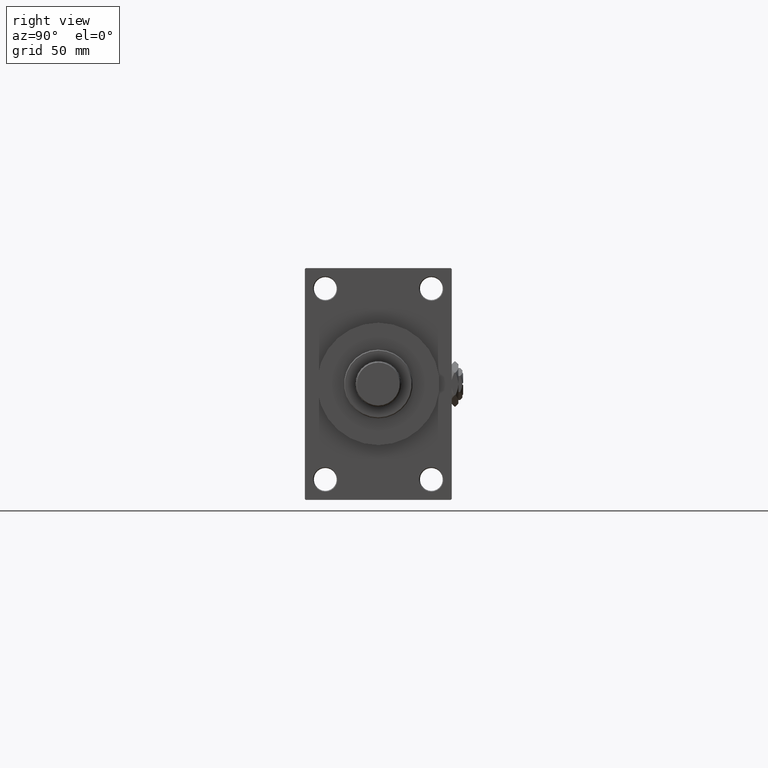
[diagram: clean part render]
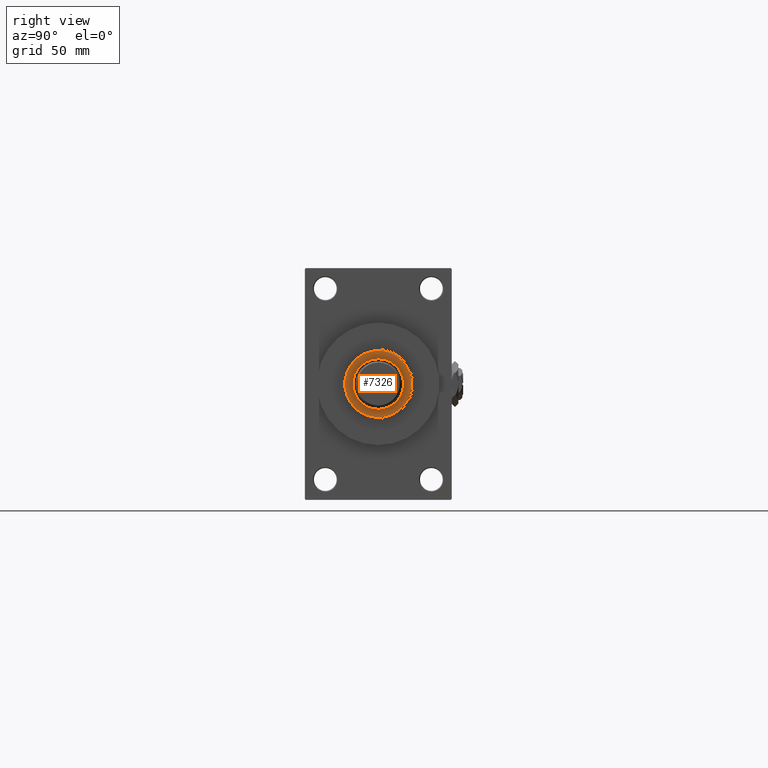
[diagram: same view with one face highlighted and labeled with its STEP entity id]
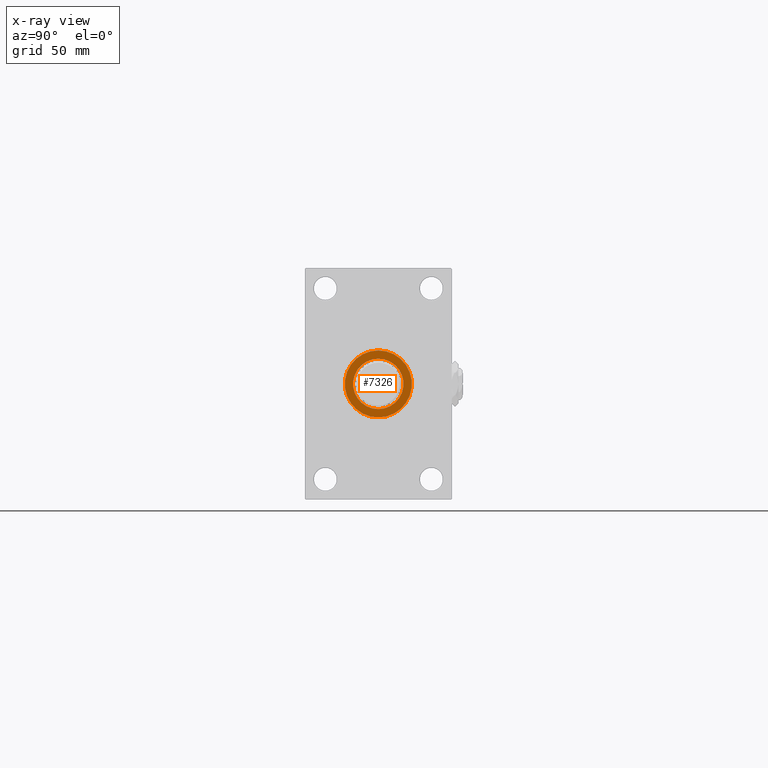
[diagram: x-ray of the same camera — body ghosted, the highlighted face saturated]
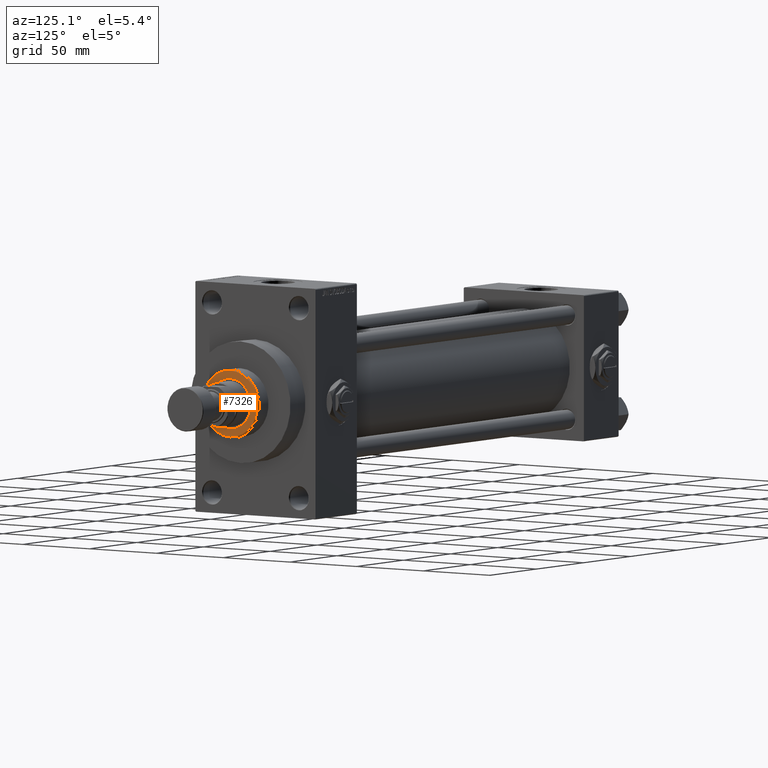
[diagram: same view with one face highlighted and labeled with its STEP entity id]
A machine part, right view. The second image highlights one B-rep face of the part: STEP entity #7326.
The next image is the same camera in x-ray: the body ghosted, the highlighted face saturated — about 0% of this face is hidden behind the body in this view.
A second angle (auxiliary view) of the same face is appended — the face is thin or edge-on in the first view.
In plain terms, the highlighted planar face has unit normal (1, -0, -0).
Its self-contained STEP definition (entity closure, byte-faithful):
#334 = ORIENTED_EDGE ( 'NONE', *, *, #8970, .F. ) ;
#803 = DIRECTION ( 'NONE',  ( 0.000000000000000000, 0.000000000000000000, 1.000000000000000000 ) ) ;
#2665 = FACE_OUTER_BOUND ( 'NONE', #18173, .T. ) ;
#3663 = VERTEX_POINT ( 'NONE', #12107 ) ;
#4675 = DIRECTION ( 'NONE',  ( 0.000000000000000000, 0.000000000000000000, 1.000000000000000000 ) ) ;
#4827 = CARTESIAN_POINT ( 'NONE',  ( 0.000000000000000000, 0.000000000000000000, 54.26000000000000512 ) ) ;
#6677 = DIRECTION ( 'NONE',  ( 1.000000000000000000, 0.000000000000000000, 0.000000000000000000 ) ) ;
#7326 = ADVANCED_FACE ( 'NONE', ( #37132, #2665 ), #30089, .T. ) ;
#7784 = CARTESIAN_POINT ( 'NONE',  ( 0.000000000000000000, 0.000000000000000000, 54.26000000000000512 ) ) ;
#8268 = DIRECTION ( 'NONE',  ( 0.000000000000000000, 0.000000000000000000, 1.000000000000000000 ) ) ;
#8348 = CARTESIAN_POINT ( 'NONE',  ( 0.000000000000000000, 0.000000000000000000, 54.26000000000000512 ) ) ;
#8898 = AXIS2_PLACEMENT_3D ( 'NONE', #34852, #4675, #27314 ) ;
#8970 = EDGE_CURVE ( 'NONE', #34630, #25350, #41533, .T. ) ;
#10515 = AXIS2_PLACEMENT_3D ( 'NONE', #4827, #803, #20681 ) ;
#11987 = DIRECTION ( 'NONE',  ( 1.000000000000000000, 0.000000000000000000, -0.000000000000000000 ) ) ;
#11991 = CIRCLE ( 'NONE', #38448, 15.50000000000000000 ) ;
#12107 = CARTESIAN_POINT ( 'NONE',  ( 20.50000000000001776, 2.541142108230759057E-15, 54.26000000000000512 ) ) ;
#15315 = CARTESIAN_POINT ( 'NONE',  ( -15.50000000000000000, 1.898202538678397557E-15, 54.26000000000000512 ) ) ;
#18173 = EDGE_LOOP ( 'NONE', ( #19446, #32550 ) ) ;
#19273 = DIRECTION ( 'NONE',  ( 0.000000000000000000, 0.000000000000000000, 1.000000000000000000 ) ) ;
#19325 = CIRCLE ( 'NONE', #8898, 20.50000000000001776 ) ;
#19419 = EDGE_LOOP ( 'NONE', ( #30408, #334 ) ) ;
#19446 = ORIENTED_EDGE ( 'NONE', *, *, #38441, .T. ) ;
#20575 = AXIS2_PLACEMENT_3D ( 'NONE', #41665, #19273, #11987 ) ;
#20681 = DIRECTION ( 'NONE',  ( 1.000000000000000000, 0.000000000000000000, 0.000000000000000000 ) ) ;
#22264 = AXIS2_PLACEMENT_3D ( 'NONE', #7784, #8268, #23130 ) ;
#23130 = DIRECTION ( 'NONE',  ( 1.000000000000000000, 0.000000000000000000, 0.000000000000000000 ) ) ;
#25350 = VERTEX_POINT ( 'NONE', #32283 ) ;
#27314 = DIRECTION ( 'NONE',  ( 1.000000000000000000, 0.000000000000000000, 0.000000000000000000 ) ) ;
#30089 = PLANE ( 'NONE',  #20575 ) ;
#30408 = ORIENTED_EDGE ( 'NONE', *, *, #30844, .F. ) ;
#30844 = EDGE_CURVE ( 'NONE', #25350, #34630, #11991, .T. ) ;
#31242 = DIRECTION ( 'NONE',  ( 0.000000000000000000, 0.000000000000000000, 1.000000000000000000 ) ) ;
#32283 = CARTESIAN_POINT ( 'NONE',  ( 15.50000000000000000, 0.000000000000000000, 54.26000000000000512 ) ) ;
#32550 = ORIENTED_EDGE ( 'NONE', *, *, #39025, .T. ) ;
#34630 = VERTEX_POINT ( 'NONE', #15315 ) ;
#34852 = CARTESIAN_POINT ( 'NONE',  ( 0.000000000000000000, 0.000000000000000000, 54.26000000000000512 ) ) ;
#37132 = FACE_BOUND ( 'NONE', #19419, .T. ) ;
#38441 = EDGE_CURVE ( 'NONE', #45062, #3663, #44249, .T. ) ;
#38448 = AXIS2_PLACEMENT_3D ( 'NONE', #8348, #31242, #6677 ) ;
#39025 = EDGE_CURVE ( 'NONE', #3663, #45062, #19325, .T. ) ;
#41533 = CIRCLE ( 'NONE', #22264, 15.50000000000000000 ) ;
#41665 = CARTESIAN_POINT ( 'NONE',  ( 0.000000000000000000, 0.000000000000000000, 54.26000000000000512 ) ) ;
#44249 = CIRCLE ( 'NONE', #10515, 20.50000000000001776 ) ;
#45062 = VERTEX_POINT ( 'NONE', #48430 ) ;
#48430 = CARTESIAN_POINT ( 'NONE',  ( -20.50000000000001776, 0.000000000000000000, 54.26000000000000512 ) ) ;